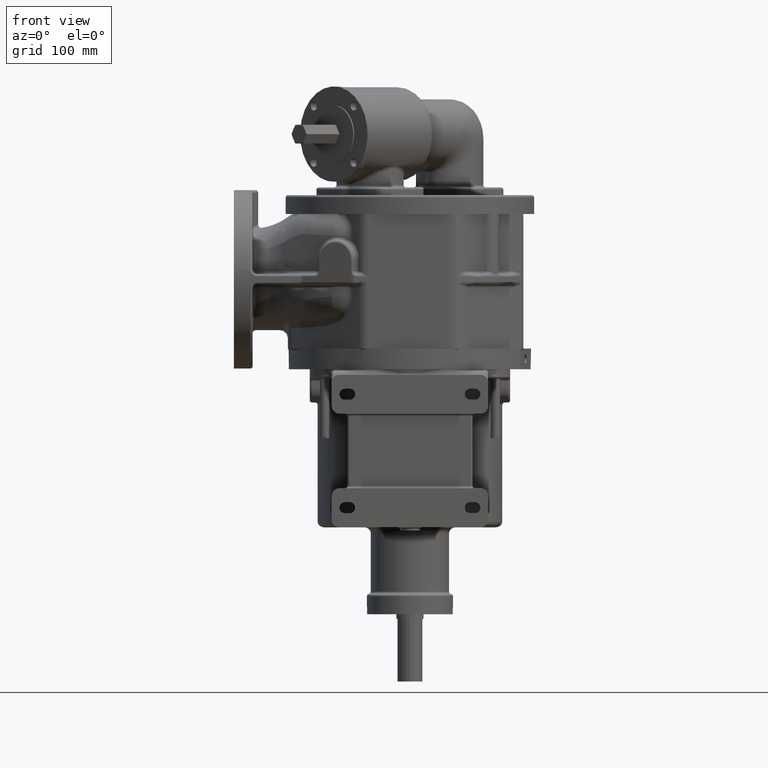
[diagram: clean part render]
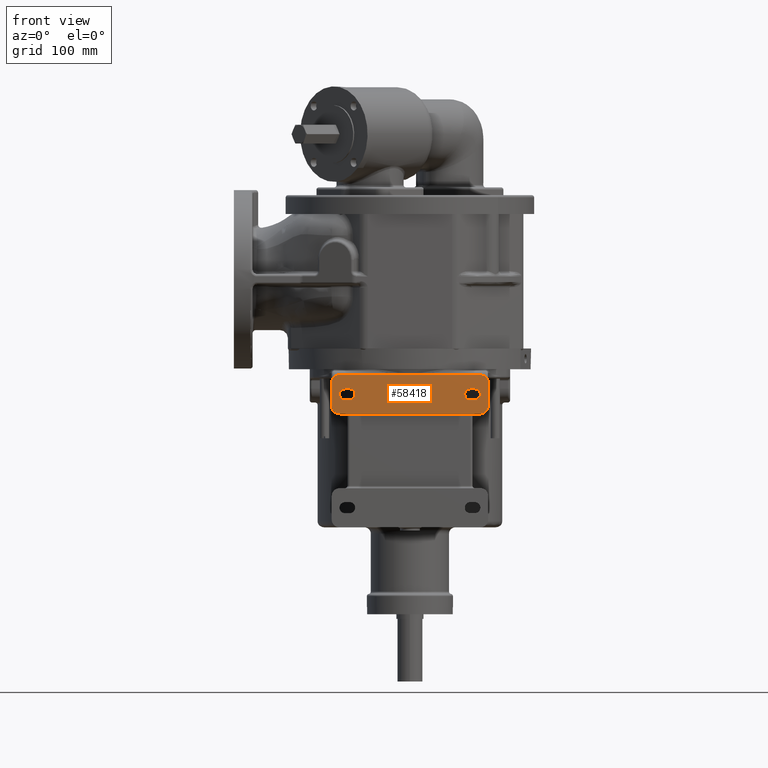
[diagram: same view with one face highlighted and labeled with its STEP entity id]
A machine part, front view. The second image highlights one B-rep face of the part: STEP entity #58418.
In plain terms, the highlighted planar face has unit normal (0, -1, 0).
Its self-contained STEP definition (entity closure, byte-faithful):
#12658=DIRECTION('',(-1.E0,0.E0,0.E0));
#12659=VECTOR('',#12658,1.8E2);
#12660=CARTESIAN_POINT('',(9.E1,-1.6E2,-3.7E1));
#12661=LINE('',#12660,#12659);
#12675=CARTESIAN_POINT('',(-8.3E1,-1.6E2,-6.2E1));
#12676=DIRECTION('',(0.E0,1.E0,0.E0));
#12677=DIRECTION('',(0.E0,0.E0,-1.E0));
#12678=AXIS2_PLACEMENT_3D('',#12675,#12676,#12677);
#12680=DIRECTION('',(-1.E0,0.E0,0.E0));
#12681=VECTOR('',#12680,6.E0);
#12682=CARTESIAN_POINT('',(-7.7E1,-1.6E2,-6.9E1));
#12683=LINE('',#12682,#12681);
#12684=CARTESIAN_POINT('',(-7.7E1,-1.6E2,-6.2E1));
#12685=DIRECTION('',(0.E0,1.E0,0.E0));
#12686=DIRECTION('',(0.E0,0.E0,1.E0));
#12687=AXIS2_PLACEMENT_3D('',#12684,#12685,#12686);
#12689=DIRECTION('',(1.E0,0.E0,0.E0));
#12690=VECTOR('',#12689,6.E0);
#12691=CARTESIAN_POINT('',(-8.3E1,-1.6E2,-5.5E1));
#12692=LINE('',#12691,#12690);
#12693=DIRECTION('',(-1.E0,0.E0,0.E0));
#12694=VECTOR('',#12693,6.E0);
#12695=CARTESIAN_POINT('',(8.3E1,-1.6E2,-6.9E1));
#12696=LINE('',#12695,#12694);
#12697=CARTESIAN_POINT('',(8.3E1,-1.6E2,-6.2E1));
#12698=DIRECTION('',(0.E0,1.E0,0.E0));
#12699=DIRECTION('',(0.E0,0.E0,1.E0));
#12700=AXIS2_PLACEMENT_3D('',#12697,#12698,#12699);
#12702=DIRECTION('',(1.E0,0.E0,0.E0));
#12703=VECTOR('',#12702,6.E0);
#12704=CARTESIAN_POINT('',(7.7E1,-1.6E2,-5.5E1));
#12705=LINE('',#12704,#12703);
#12706=CARTESIAN_POINT('',(7.7E1,-1.6E2,-6.2E1));
#12707=DIRECTION('',(0.E0,1.E0,0.E0));
#12708=DIRECTION('',(0.E0,0.E0,-1.E0));
#12709=AXIS2_PLACEMENT_3D('',#12706,#12707,#12708);
#12711=DIRECTION('',(0.E0,0.E0,1.E0));
#12712=VECTOR('',#12711,3.E1);
#12713=CARTESIAN_POINT('',(1.E2,-1.6E2,-7.7E1));
#12714=LINE('',#12713,#12712);
#12800=CARTESIAN_POINT('',(9.E1,-1.6E2,-4.7E1));
#12801=DIRECTION('',(0.E0,1.E0,0.E0));
#12802=DIRECTION('',(0.E0,0.E0,1.E0));
#12803=AXIS2_PLACEMENT_3D('',#12800,#12801,#12802);
#14586=DIRECTION('',(0.E0,0.E0,-1.E0));
#14587=VECTOR('',#14586,3.E1);
#14588=CARTESIAN_POINT('',(-1.E2,-1.6E2,-4.7E1));
#14589=LINE('',#14588,#14587);
#14675=CARTESIAN_POINT('',(-9.E1,-1.6E2,-7.7E1));
#14676=DIRECTION('',(0.E0,1.E0,0.E0));
#14677=DIRECTION('',(0.E0,0.E0,-1.E0));
#14678=AXIS2_PLACEMENT_3D('',#14675,#14676,#14677);
#14685=DIRECTION('',(1.E0,0.E0,0.E0));
#14686=VECTOR('',#14685,1.8E2);
#14687=CARTESIAN_POINT('',(-9.E1,-1.6E2,-8.7E1));
#14688=LINE('',#14687,#14686);
#14717=CARTESIAN_POINT('',(9.E1,-1.6E2,-7.7E1));
#14718=DIRECTION('',(0.E0,1.E0,0.E0));
#14719=DIRECTION('',(1.E0,0.E0,0.E0));
#14720=AXIS2_PLACEMENT_3D('',#14717,#14718,#14719);
#16783=CARTESIAN_POINT('',(-9.E1,-1.6E2,-4.7E1));
#16784=DIRECTION('',(0.E0,1.E0,0.E0));
#16785=DIRECTION('',(-1.E0,0.E0,0.E0));
#16786=AXIS2_PLACEMENT_3D('',#16783,#16784,#16785);
#25242=CARTESIAN_POINT('',(1.E2,-1.6E2,-7.7E1));
#25243=CARTESIAN_POINT('',(1.E2,-1.6E2,-4.7E1));
#25244=VERTEX_POINT('',#25242);
#25245=VERTEX_POINT('',#25243);
#25246=CARTESIAN_POINT('',(9.E1,-1.6E2,-3.7E1));
#25247=CARTESIAN_POINT('',(-9.E1,-1.6E2,-3.7E1));
#25248=VERTEX_POINT('',#25246);
#25249=VERTEX_POINT('',#25247);
#25250=CARTESIAN_POINT('',(-1.E2,-1.6E2,-4.7E1));
#25251=CARTESIAN_POINT('',(-1.E2,-1.6E2,-7.7E1));
#25252=VERTEX_POINT('',#25250);
#25253=VERTEX_POINT('',#25251);
#25254=CARTESIAN_POINT('',(-9.E1,-1.6E2,-8.7E1));
#25255=CARTESIAN_POINT('',(9.E1,-1.6E2,-8.7E1));
#25256=VERTEX_POINT('',#25254);
#25257=VERTEX_POINT('',#25255);
#25294=CARTESIAN_POINT('',(-8.3E1,-1.6E2,-6.9E1));
#25295=CARTESIAN_POINT('',(-8.3E1,-1.6E2,-5.5E1));
#25296=VERTEX_POINT('',#25294);
#25297=VERTEX_POINT('',#25295);
#25298=CARTESIAN_POINT('',(-7.7E1,-1.6E2,-5.5E1));
#25299=VERTEX_POINT('',#25298);
#25300=CARTESIAN_POINT('',(-7.7E1,-1.6E2,-6.9E1));
#25301=VERTEX_POINT('',#25300);
#25302=CARTESIAN_POINT('',(8.3E1,-1.6E2,-6.9E1));
#25303=CARTESIAN_POINT('',(7.7E1,-1.6E2,-6.9E1));
#25304=VERTEX_POINT('',#25302);
#25305=VERTEX_POINT('',#25303);
#25306=CARTESIAN_POINT('',(7.7E1,-1.6E2,-5.5E1));
#25307=VERTEX_POINT('',#25306);
#25308=CARTESIAN_POINT('',(8.3E1,-1.6E2,-5.5E1));
#25309=VERTEX_POINT('',#25308);
#58376=CARTESIAN_POINT('',(0.E0,-1.6E2,-3.E1));
#58377=DIRECTION('',(0.E0,-1.E0,0.E0));
#58378=DIRECTION('',(0.E0,0.E0,1.E0));
#58379=AXIS2_PLACEMENT_3D('',#58376,#58377,#58378);
#58380=PLANE('',#58379);
#58382=ORIENTED_EDGE('',*,*,#58381,.F.);
#58384=ORIENTED_EDGE('',*,*,#58383,.T.);
#58386=ORIENTED_EDGE('',*,*,#58385,.F.);
#58388=ORIENTED_EDGE('',*,*,#58387,.T.);
#58390=ORIENTED_EDGE('',*,*,#58389,.F.);
#58392=ORIENTED_EDGE('',*,*,#58391,.T.);
#58393=ORIENTED_EDGE('',*,*,#58363,.F.);
#58395=ORIENTED_EDGE('',*,*,#58394,.T.);
#58396=EDGE_LOOP('',(#58382,#58384,#58386,#58388,#58390,#58392,#58393,#58395));
#58397=FACE_OUTER_BOUND('',#58396,.F.);
#58399=ORIENTED_EDGE('',*,*,#58398,.F.);
#58401=ORIENTED_EDGE('',*,*,#58400,.F.);
#58403=ORIENTED_EDGE('',*,*,#58402,.F.);
#58405=ORIENTED_EDGE('',*,*,#58404,.F.);
#58406=EDGE_LOOP('',(#58399,#58401,#58403,#58405));
#58407=FACE_BOUND('',#58406,.F.);
#58409=ORIENTED_EDGE('',*,*,#58408,.F.);
#58411=ORIENTED_EDGE('',*,*,#58410,.F.);
#58413=ORIENTED_EDGE('',*,*,#58412,.F.);
#58415=ORIENTED_EDGE('',*,*,#58414,.F.);
#58416=EDGE_LOOP('',(#58409,#58411,#58413,#58415));
#58417=FACE_BOUND('',#58416,.F.);
#58418=ADVANCED_FACE('',(#58397,#58407,#58417),#58380,.T.);
#12679=CIRCLE('',#12678,7.E0);
#12688=CIRCLE('',#12687,7.E0);
#12701=CIRCLE('',#12700,7.E0);
#12710=CIRCLE('',#12709,7.E0);
#12804=CIRCLE('',#12803,1.E1);
#14679=CIRCLE('',#14678,1.E1);
#14721=CIRCLE('',#14720,1.E1);
#16787=CIRCLE('',#16786,1.E1);
#58363=EDGE_CURVE('',#25248,#25249,#12661,.T.);
#58381=EDGE_CURVE('',#25244,#25245,#12714,.T.);
#58383=EDGE_CURVE('',#25244,#25257,#14721,.T.);
#58385=EDGE_CURVE('',#25256,#25257,#14688,.T.);
#58387=EDGE_CURVE('',#25256,#25253,#14679,.T.);
#58389=EDGE_CURVE('',#25252,#25253,#14589,.T.);
#58391=EDGE_CURVE('',#25252,#25249,#16787,.T.);
#58394=EDGE_CURVE('',#25248,#25245,#12804,.T.);
#58398=EDGE_CURVE('',#25296,#25297,#12679,.T.);
#58400=EDGE_CURVE('',#25301,#25296,#12683,.T.);
#58402=EDGE_CURVE('',#25299,#25301,#12688,.T.);
#58404=EDGE_CURVE('',#25297,#25299,#12692,.T.);
#58408=EDGE_CURVE('',#25304,#25305,#12696,.T.);
#58410=EDGE_CURVE('',#25309,#25304,#12701,.T.);
#58412=EDGE_CURVE('',#25307,#25309,#12705,.T.);
#58414=EDGE_CURVE('',#25305,#25307,#12710,.T.);